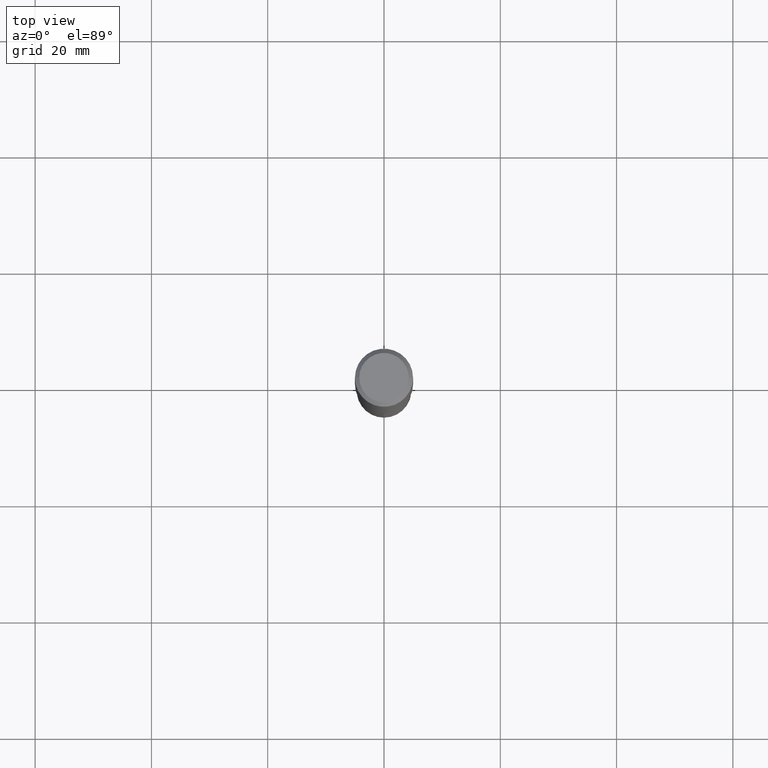
[diagram: clean part render]
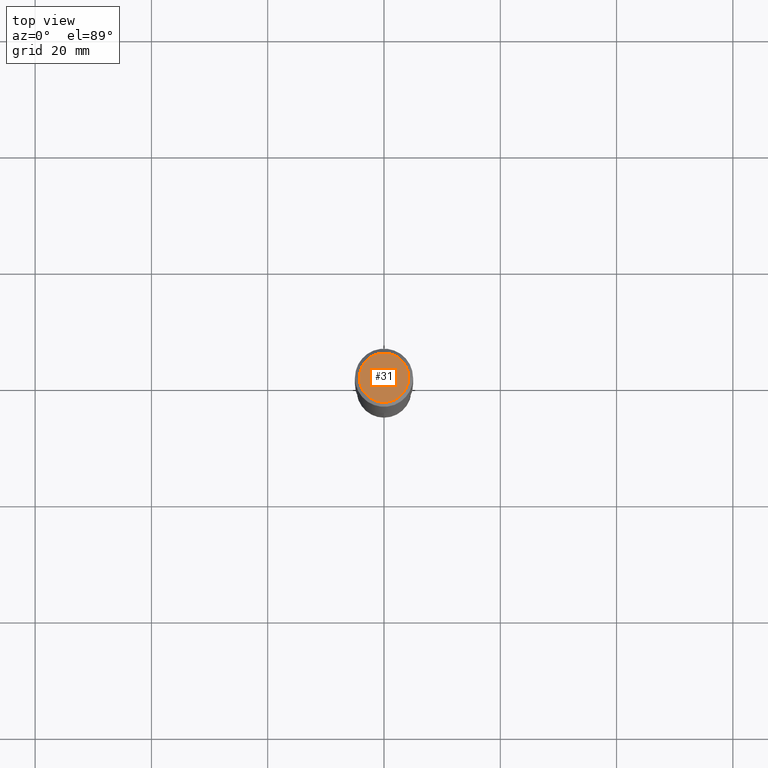
[diagram: same view with one face highlighted and labeled with its STEP entity id]
A machine part, top view. The second image highlights one B-rep face of the part: STEP entity #31.
In plain terms, the highlighted planar face has unit normal (0, -0, -1).
Its self-contained STEP definition (entity closure, byte-faithful):
#4 = DIRECTION ( 'NONE',  ( -2.445468806185136597E-29, 3.491481338843145583E-15, 1.000000000000000000 ) ) ;
#31 = ADVANCED_FACE ( 'NONE', ( #372 ), #455, .F. ) ;
#38 = CARTESIAN_POINT ( 'NONE',  ( -1.001697619218021790E-46, 1.430158722866389718E-32, 4.096137381448108366E-18 ) ) ;
#51 = DIRECTION ( 'NONE',  ( -1.000000000000000000, 6.982962677686265922E-15, -4.876176775795935793E-29 ) ) ;
#128 = CIRCLE ( 'NONE', #324, 0.1673224999999999851 ) ;
#135 = CARTESIAN_POINT ( 'NONE',  ( -5.008488096090108951E-47, 7.150793614331948590E-33, 2.048068690724054183E-18 ) ) ;
#142 = CARTESIAN_POINT ( 'NONE',  ( 0.1673224999999999851, -1.300749711163072397E-15, 4.096137381456741925E-18 ) ) ;
#167 = CARTESIAN_POINT ( 'NONE',  ( -1.001697619218021790E-46, 1.430158722866389718E-32, 4.096137381448108366E-18 ) ) ;
#184 = EDGE_CURVE ( 'NONE', #338, #449, #128, .T. ) ;
#191 = CIRCLE ( 'NONE', #444, 0.1673224999999999851 ) ;
#196 = EDGE_CURVE ( 'NONE', #449, #338, #191, .T. ) ;
#226 = DIRECTION ( 'NONE',  ( 1.000000000000000000, -6.982962677686267499E-15, 4.876294436782262290E-29 ) ) ;
#246 = DIRECTION ( 'NONE',  ( 2.438088387897960049E-29, -3.491481338843145188E-15, -1.000000000000000000 ) ) ;
#254 = ORIENTED_EDGE ( 'NONE', *, *, #196, .T. ) ;
#311 = DIRECTION ( 'NONE',  ( -2.445468806185136597E-29, 3.491481338843145583E-15, 1.000000000000000000 ) ) ;
#324 = AXIS2_PLACEMENT_3D ( 'NONE', #167, #311, #226 ) ;
#338 = VERTEX_POINT ( 'NONE', #360 ) ;
#360 = CARTESIAN_POINT ( 'NONE',  ( -0.1673224999999999851, 1.219954130253505263E-15, 4.096137381439757534E-18 ) ) ;
#372 = FACE_OUTER_BOUND ( 'NONE', #432, .T. ) ;
#373 = AXIS2_PLACEMENT_3D ( 'NONE', #135, #246, #51 ) ;
#389 = DIRECTION ( 'NONE',  ( 1.000000000000000000, -6.982962677686267499E-15, 4.876294436782262290E-29 ) ) ;
#432 = EDGE_LOOP ( 'NONE', ( #443, #254 ) ) ;
#443 = ORIENTED_EDGE ( 'NONE', *, *, #184, .T. ) ;
#444 = AXIS2_PLACEMENT_3D ( 'NONE', #38, #4, #389 ) ;
#449 = VERTEX_POINT ( 'NONE', #142 ) ;
#455 = PLANE ( 'NONE',  #373 ) ;